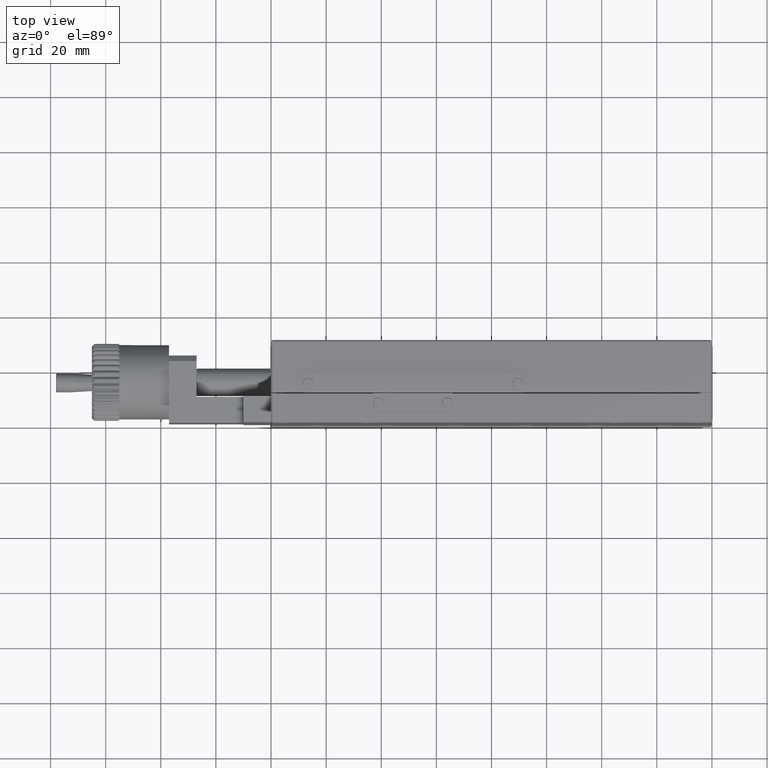
[diagram: clean part render]
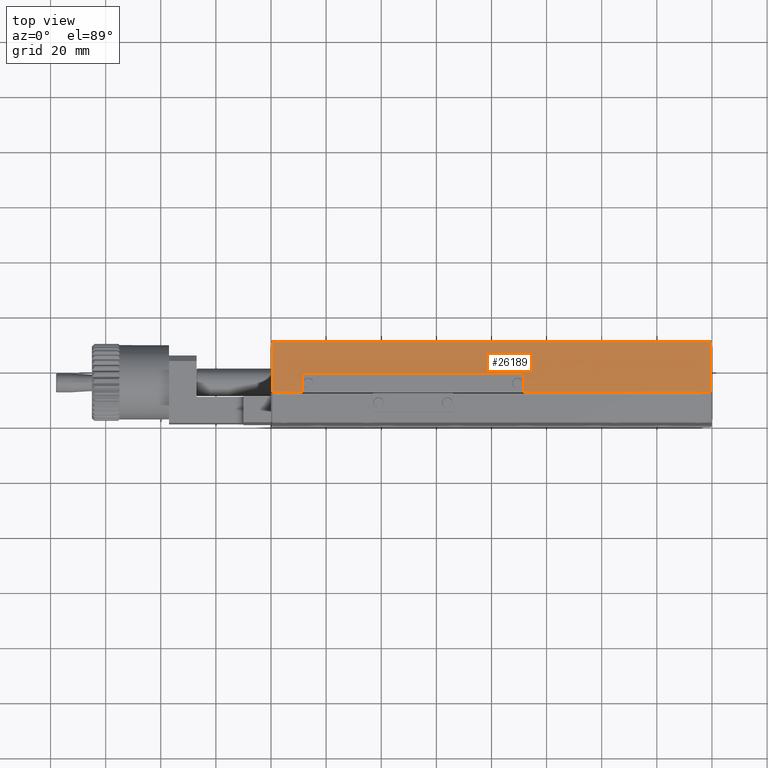
[diagram: same view with one face highlighted and labeled with its STEP entity id]
A machine part, top view. The second image highlights one B-rep face of the part: STEP entity #26189.
In plain terms, the highlighted planar face has unit normal (0, 0, 1).
Its self-contained STEP definition (entity closure, byte-faithful):
#2943 = EDGE_LOOP ( 'NONE', ( #63734, #26514, #51484, #3619, #49537, #48296, #70205, #57518 ) ) ;
#3619 = ORIENTED_EDGE ( 'NONE', *, *, #68274, .T. ) ;
#4345 = DIRECTION ( 'NONE',  ( 0.000000000000000000, 0.000000000000000000, 1.000000000000000000 ) ) ;
#5589 = CARTESIAN_POINT ( 'NONE',  ( -159.5000000000000000, 10.99999999999999467, 50.00000000000000000 ) ) ;
#6414 = CARTESIAN_POINT ( 'NONE',  ( -160.0000000000000000, 11.00000000000000000, 50.00000000000000000 ) ) ;
#9746 = CARTESIAN_POINT ( 'NONE',  ( -160.0000000000000000, 11.00000000000000000, 50.00000000000000000 ) ) ;
#10075 = DIRECTION ( 'NONE',  ( -0.000000000000000000, 1.000000000000000000, 0.000000000000000000 ) ) ;
#10829 = LINE ( 'NONE', #9746, #13895 ) ;
#11492 = VECTOR ( 'NONE', #28670, 1000.000000000000000 ) ;
#11932 = LINE ( 'NONE', #66993, #29880 ) ;
#12550 = VERTEX_POINT ( 'NONE', #13327 ) ;
#12677 = VERTEX_POINT ( 'NONE', #5589 ) ;
#13275 = EDGE_CURVE ( 'NONE', #54957, #45125, #62412, .T. ) ;
#13327 = CARTESIAN_POINT ( 'NONE',  ( -159.5000000000000000, 29.50000000000000000, 50.00000000000000000 ) ) ;
#13895 = VECTOR ( 'NONE', #54507, 1000.000000000000000 ) ;
#14093 = DIRECTION ( 'NONE',  ( -0.000000000000000000, 1.000000000000000000, 0.000000000000000000 ) ) ;
#14604 = CARTESIAN_POINT ( 'NONE',  ( -160.0000000000000000, 30.00000000000000000, 50.00000000000000000 ) ) ;
#16187 = CARTESIAN_POINT ( 'NONE',  ( -68.50000000000000000, 17.80000000000000071, 50.00000000000000000 ) ) ;
#16218 = VERTEX_POINT ( 'NONE', #18134 ) ;
#18134 = CARTESIAN_POINT ( 'NONE',  ( -148.5000000000000000, 17.80000000000000071, 50.00000000000000000 ) ) ;
#18305 = VECTOR ( 'NONE', #54363, 1000.000000000000000 ) ;
#21351 = VECTOR ( 'NONE', #68620, 1000.000000000000000 ) ;
#21904 = VERTEX_POINT ( 'NONE', #46112 ) ;
#23863 = CARTESIAN_POINT ( 'NONE',  ( -159.5000000000000000, 30.00000000000000000, 50.00000000000000000 ) ) ;
#23894 = CARTESIAN_POINT ( 'NONE',  ( -68.50000000000000000, 30.00000000000000000, 50.00000000000000000 ) ) ;
#24108 = AXIS2_PLACEMENT_3D ( 'NONE', #14604, #4345, #26353 ) ;
#25740 = VECTOR ( 'NONE', #14093, 1000.000000000000000 ) ;
#26189 = ADVANCED_FACE ( 'NONE', ( #32215 ), #64534, .T. ) ;
#26353 = DIRECTION ( 'NONE',  ( 1.000000000000000000, 0.000000000000000000, -0.000000000000000000 ) ) ;
#26506 = CARTESIAN_POINT ( 'NONE',  ( -160.0000000000000000, 17.80000000000000071, 50.00000000000000000 ) ) ;
#26514 = ORIENTED_EDGE ( 'NONE', *, *, #59337, .T. ) ;
#28670 = DIRECTION ( 'NONE',  ( 0.000000000000000000, -1.000000000000000000, -0.000000000000000000 ) ) ;
#28787 = VERTEX_POINT ( 'NONE', #32406 ) ;
#29533 = DIRECTION ( 'NONE',  ( 1.000000000000000000, 0.000000000000000000, -0.000000000000000000 ) ) ;
#29880 = VECTOR ( 'NONE', #44259, 1000.000000000000000 ) ;
#32215 = FACE_OUTER_BOUND ( 'NONE', #2943, .T. ) ;
#32406 = CARTESIAN_POINT ( 'NONE',  ( -0.4999999999999998890, 11.00000000000000000, 50.00000000000000000 ) ) ;
#35952 = VECTOR ( 'NONE', #10075, 1000.000000000000000 ) ;
#37087 = EDGE_CURVE ( 'NONE', #28787, #21904, #61410, .T. ) ;
#37568 = CARTESIAN_POINT ( 'NONE',  ( -148.5000000000000000, 30.00000000000000000, 50.00000000000000000 ) ) ;
#38326 = CARTESIAN_POINT ( 'NONE',  ( -0.5000000000000004441, 30.00000000000000000, 50.00000000000000000 ) ) ;
#39300 = CARTESIAN_POINT ( 'NONE',  ( -68.50000000000000000, 11.00000000000000000, 50.00000000000000000 ) ) ;
#40903 = LINE ( 'NONE', #6414, #71404 ) ;
#42562 = VERTEX_POINT ( 'NONE', #44080 ) ;
#44080 = CARTESIAN_POINT ( 'NONE',  ( -148.5000000000000000, 11.00000000000000000, 50.00000000000000000 ) ) ;
#44259 = DIRECTION ( 'NONE',  ( -1.000000000000000000, -0.000000000000000000, -0.000000000000000000 ) ) ;
#45125 = VERTEX_POINT ( 'NONE', #39300 ) ;
#46112 = CARTESIAN_POINT ( 'NONE',  ( -0.4999999999999952260, 29.50000000000000355, 50.00000000000000000 ) ) ;
#48296 = ORIENTED_EDGE ( 'NONE', *, *, #57788, .T. ) ;
#49537 = ORIENTED_EDGE ( 'NONE', *, *, #37087, .T. ) ;
#51484 = ORIENTED_EDGE ( 'NONE', *, *, #13275, .T. ) ;
#52718 = EDGE_CURVE ( 'NONE', #12550, #12677, #57976, .T. ) ;
#54363 = DIRECTION ( 'NONE',  ( 1.000000000000000000, 0.000000000000000000, -0.000000000000000000 ) ) ;
#54507 = DIRECTION ( 'NONE',  ( 1.000000000000000000, 0.000000000000000000, -0.000000000000000000 ) ) ;
#54957 = VERTEX_POINT ( 'NONE', #16187 ) ;
#57518 = ORIENTED_EDGE ( 'NONE', *, *, #71036, .T. ) ;
#57788 = EDGE_CURVE ( 'NONE', #21904, #12550, #11932, .T. ) ;
#57976 = LINE ( 'NONE', #23863, #21351 ) ;
#58438 = LINE ( 'NONE', #26506, #18305 ) ;
#59337 = EDGE_CURVE ( 'NONE', #16218, #54957, #58438, .T. ) ;
#61410 = LINE ( 'NONE', #38326, #35952 ) ;
#62412 = LINE ( 'NONE', #23894, #11492 ) ;
#63734 = ORIENTED_EDGE ( 'NONE', *, *, #71223, .T. ) ;
#64534 = PLANE ( 'NONE',  #24108 ) ;
#66993 = CARTESIAN_POINT ( 'NONE',  ( -160.0000000000000000, 29.50000000000000000, 50.00000000000000000 ) ) ;
#68274 = EDGE_CURVE ( 'NONE', #45125, #28787, #10829, .T. ) ;
#68620 = DIRECTION ( 'NONE',  ( 0.000000000000000000, -1.000000000000000000, -0.000000000000000000 ) ) ;
#70205 = ORIENTED_EDGE ( 'NONE', *, *, #52718, .T. ) ;
#71036 = EDGE_CURVE ( 'NONE', #12677, #42562, #40903, .T. ) ;
#71223 = EDGE_CURVE ( 'NONE', #42562, #16218, #71331, .T. ) ;
#71331 = LINE ( 'NONE', #37568, #25740 ) ;
#71404 = VECTOR ( 'NONE', #29533, 1000.000000000000000 ) ;